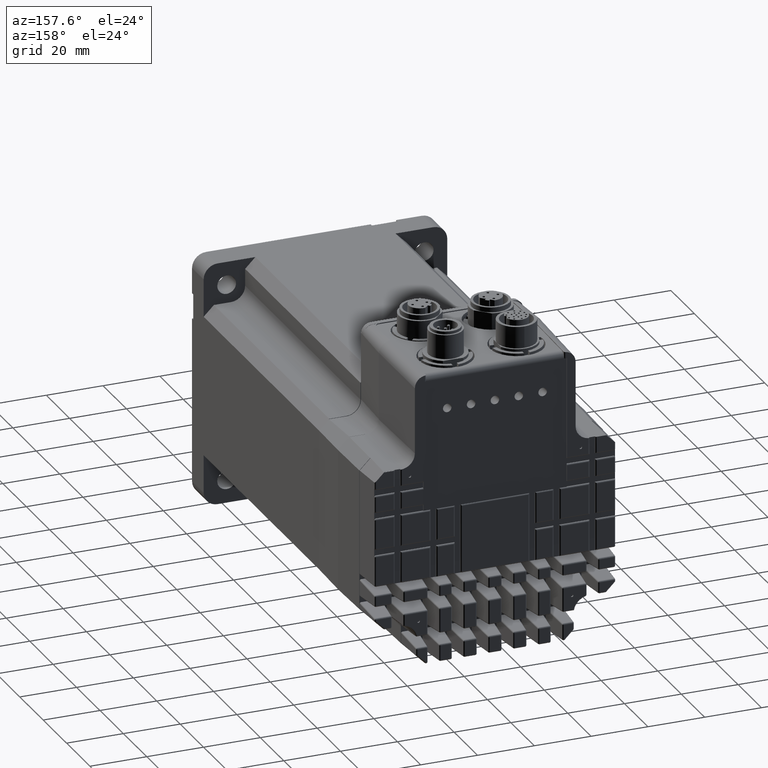
[diagram: clean part render]
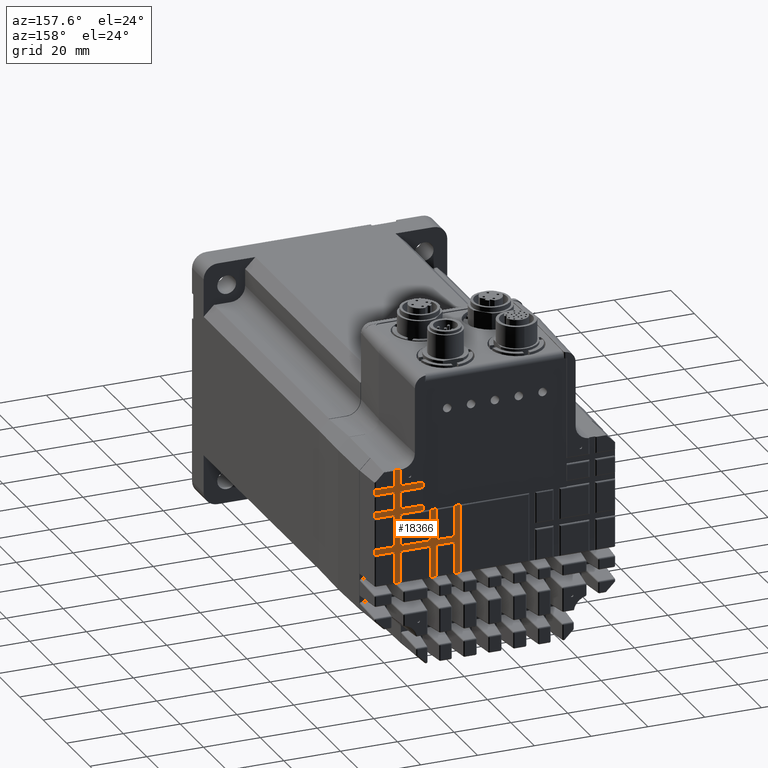
[diagram: same view with one face highlighted and labeled with its STEP entity id]
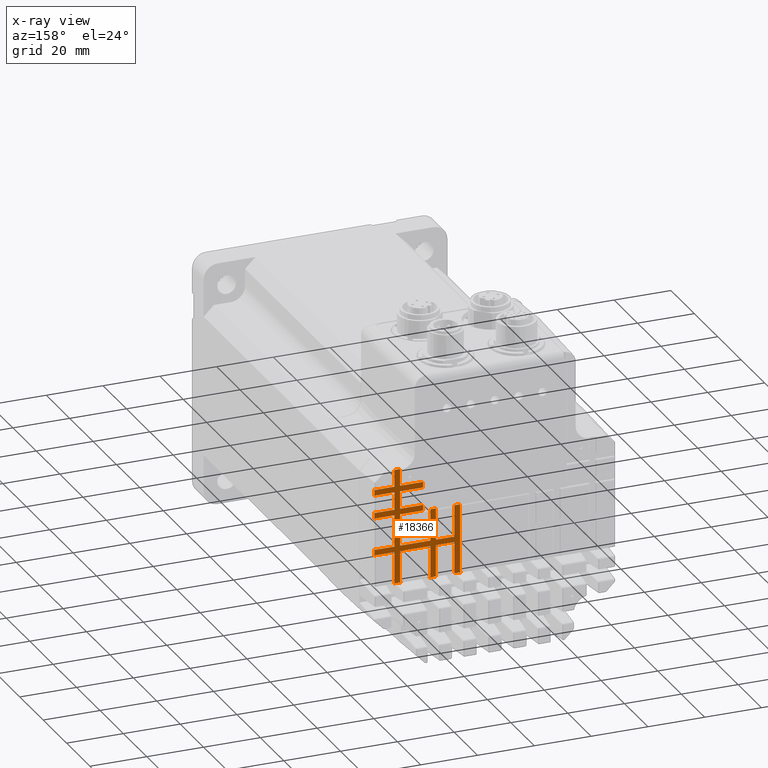
[diagram: x-ray of the same camera — body ghosted, the highlighted face saturated]
A machine part, auxiliary view. The second image highlights one B-rep face of the part: STEP entity #18366.
The next image is the same camera in x-ray: the body ghosted, the highlighted face saturated — about 0% of this face is hidden behind the body in this view.
In plain terms, the highlighted planar face has unit normal (0, -1, 0).
Its self-contained STEP definition (entity closure, byte-faithful):
#375=ELLIPSE('',#19656,0.500304772149411,0.5);
#376=ELLIPSE('',#19657,0.500304772149411,0.5);
#377=ELLIPSE('',#19658,0.500304772149411,0.5);
#498=B_SPLINE_CURVE_WITH_KNOTS('',3,(#28072,#28073,#28074,#28075),
 .UNSPECIFIED.,.F.,.F.,(4,4),(0.,0.000758926731943536),.UNSPECIFIED.);
#499=B_SPLINE_CURVE_WITH_KNOTS('',3,(#28076,#28077,#28078,#28079),
 .UNSPECIFIED.,.F.,.F.,(4,4),(0.,0.000758549921999602),.UNSPECIFIED.);
#500=B_SPLINE_CURVE_WITH_KNOTS('',3,(#28087,#28088,#28089,#28090),
 .UNSPECIFIED.,.F.,.F.,(4,4),(0.,0.000758926731943508),.UNSPECIFIED.);
#501=B_SPLINE_CURVE_WITH_KNOTS('',3,(#28091,#28092,#28093,#28094),
 .UNSPECIFIED.,.F.,.F.,(4,4),(0.,0.000758549921999589),.UNSPECIFIED.);
#502=B_SPLINE_CURVE_WITH_KNOTS('',3,(#28102,#28103,#28104,#28105),
 .UNSPECIFIED.,.F.,.F.,(4,4),(0.,0.000758926731943466),.UNSPECIFIED.);
#503=B_SPLINE_CURVE_WITH_KNOTS('',3,(#28106,#28107,#28108,#28109),
 .UNSPECIFIED.,.F.,.F.,(4,4),(0.,0.000758549921999566),.UNSPECIFIED.);
#504=B_SPLINE_CURVE_WITH_KNOTS('',3,(#28139,#28140,#28141,#28142),
 .UNSPECIFIED.,.F.,.F.,(4,4),(0.,0.000758549921999556),.UNSPECIFIED.);
#616=CIRCLE('',#19541,4.99127246753589);
#621=CIRCLE('',#19659,5.09999999999999);
#2649=ORIENTED_EDGE('',*,*,#7094,.T.);
#2650=ORIENTED_EDGE('',*,*,#7095,.T.);
#2651=ORIENTED_EDGE('',*,*,#7096,.T.);
#2652=ORIENTED_EDGE('',*,*,#6739,.T.);
#2653=ORIENTED_EDGE('',*,*,#7097,.T.);
#2654=ORIENTED_EDGE('',*,*,#7098,.F.);
#2655=ORIENTED_EDGE('',*,*,#7099,.F.);
#2656=ORIENTED_EDGE('',*,*,#7100,.F.);
#2657=ORIENTED_EDGE('',*,*,#7101,.T.);
#2658=ORIENTED_EDGE('',*,*,#6751,.T.);
#2659=ORIENTED_EDGE('',*,*,#7102,.T.);
#2660=ORIENTED_EDGE('',*,*,#7103,.F.);
#2661=ORIENTED_EDGE('',*,*,#7104,.F.);
#2662=ORIENTED_EDGE('',*,*,#7105,.F.);
#2663=ORIENTED_EDGE('',*,*,#7106,.T.);
#2664=ORIENTED_EDGE('',*,*,#6747,.T.);
#2665=ORIENTED_EDGE('',*,*,#7107,.T.);
#2666=ORIENTED_EDGE('',*,*,#7108,.F.);
#2667=ORIENTED_EDGE('',*,*,#7109,.F.);
#2668=ORIENTED_EDGE('',*,*,#7110,.T.);
#2669=ORIENTED_EDGE('',*,*,#7111,.T.);
#2670=ORIENTED_EDGE('',*,*,#7112,.T.);
#2671=ORIENTED_EDGE('',*,*,#7113,.F.);
#2672=ORIENTED_EDGE('',*,*,#7114,.F.);
#2673=ORIENTED_EDGE('',*,*,#7115,.F.);
#2674=ORIENTED_EDGE('',*,*,#7116,.T.);
#2675=ORIENTED_EDGE('',*,*,#7117,.T.);
#2676=ORIENTED_EDGE('',*,*,#7118,.T.);
#2677=ORIENTED_EDGE('',*,*,#7119,.T.);
#2678=ORIENTED_EDGE('',*,*,#7120,.T.);
#2679=ORIENTED_EDGE('',*,*,#7121,.T.);
#2680=ORIENTED_EDGE('',*,*,#7122,.T.);
#2681=ORIENTED_EDGE('',*,*,#7123,.F.);
#2682=ORIENTED_EDGE('',*,*,#7124,.F.);
#2683=ORIENTED_EDGE('',*,*,#7125,.T.);
#2684=ORIENTED_EDGE('',*,*,#7126,.T.);
#2685=ORIENTED_EDGE('',*,*,#7127,.T.);
#2686=ORIENTED_EDGE('',*,*,#7128,.F.);
#2687=ORIENTED_EDGE('',*,*,#7129,.T.);
#2688=ORIENTED_EDGE('',*,*,#7130,.T.);
#2689=ORIENTED_EDGE('',*,*,#7131,.T.);
#2690=ORIENTED_EDGE('',*,*,#7132,.T.);
#2691=ORIENTED_EDGE('',*,*,#7133,.F.);
#2692=ORIENTED_EDGE('',*,*,#7134,.T.);
#2693=ORIENTED_EDGE('',*,*,#7135,.T.);
#2694=ORIENTED_EDGE('',*,*,#7136,.T.);
#2695=ORIENTED_EDGE('',*,*,#7137,.F.);
#2696=ORIENTED_EDGE('',*,*,#7138,.F.);
#2697=ORIENTED_EDGE('',*,*,#7139,.F.);
#2698=ORIENTED_EDGE('',*,*,#7140,.T.);
#2699=ORIENTED_EDGE('',*,*,#7141,.F.);
#2700=ORIENTED_EDGE('',*,*,#6863,.T.);
#2701=ORIENTED_EDGE('',*,*,#6735,.F.);
#2702=ORIENTED_EDGE('',*,*,#6758,.T.);
#2703=ORIENTED_EDGE('',*,*,#7142,.T.);
#6735=EDGE_CURVE('',#9004,#9005,#10473,.T.);
#6739=EDGE_CURVE('',#9007,#9008,#10477,.F.);
#6747=EDGE_CURVE('',#9016,#9015,#10483,.F.);
#6751=EDGE_CURVE('',#9020,#9019,#10485,.F.);
#6758=EDGE_CURVE('',#9004,#9025,#10489,.T.);
#6863=EDGE_CURVE('',#9115,#9005,#616,.T.);
#7094=EDGE_CURVE('',#9337,#9338,#10698,.T.);
#7095=EDGE_CURVE('',#9338,#9339,#10699,.T.);
#7096=EDGE_CURVE('',#9339,#9007,#498,.T.);
#7097=EDGE_CURVE('',#9008,#9340,#499,.T.);
#7098=EDGE_CURVE('',#9341,#9340,#10700,.T.);
#7099=EDGE_CURVE('',#9342,#9341,#10701,.T.);
#7100=EDGE_CURVE('',#9343,#9342,#10702,.T.);
#7101=EDGE_CURVE('',#9343,#9020,#500,.T.);
#7102=EDGE_CURVE('',#9019,#9344,#501,.T.);
#7103=EDGE_CURVE('',#9345,#9344,#10703,.T.);
#7104=EDGE_CURVE('',#9346,#9345,#10704,.T.);
#7105=EDGE_CURVE('',#9347,#9346,#10705,.T.);
#7106=EDGE_CURVE('',#9347,#9016,#502,.T.);
#7107=EDGE_CURVE('',#9015,#9348,#503,.T.);
#7108=EDGE_CURVE('',#9349,#9348,#10706,.T.);
#7109=EDGE_CURVE('',#9350,#9349,#10707,.T.);
#7110=EDGE_CURVE('',#9350,#9351,#375,.T.);
#7111=EDGE_CURVE('',#9351,#9352,#10708,.F.);
#7112=EDGE_CURVE('',#9352,#9353,#376,.T.);
#7113=EDGE_CURVE('',#9354,#9353,#10709,.T.);
#7114=EDGE_CURVE('',#9355,#9354,#10710,.T.);
#7115=EDGE_CURVE('',#9356,#9355,#10711,.T.);
#7116=EDGE_CURVE('',#9356,#9357,#377,.T.);
#7117=EDGE_CURVE('',#9357,#9358,#10712,.F.);
#7118=EDGE_CURVE('',#9358,#9359,#10713,.T.);
#7119=EDGE_CURVE('',#9359,#9360,#10714,.T.);
#7120=EDGE_CURVE('',#9360,#9361,#10715,.T.);
#7121=EDGE_CURVE('',#9361,#9362,#10716,.F.);
#7122=EDGE_CURVE('',#9362,#9363,#504,.T.);
#7123=EDGE_CURVE('',#9364,#9363,#10717,.T.);
#7124=EDGE_CURVE('',#9365,#9364,#10718,.T.);
#7125=EDGE_CURVE('',#9365,#9366,#10719,.T.);
#7126=EDGE_CURVE('',#9366,#9367,#10720,.T.);
#7127=EDGE_CURVE('',#9367,#9368,#10721,.T.);
#7128=EDGE_CURVE('',#9369,#9368,#10722,.T.);
#7129=EDGE_CURVE('',#9369,#9370,#10723,.T.);
#7130=EDGE_CURVE('',#9370,#9371,#10724,.T.);
#7131=EDGE_CURVE('',#9371,#9372,#10725,.T.);
#7132=EDGE_CURVE('',#9372,#9373,#10726,.T.);
#7133=EDGE_CURVE('',#9374,#9373,#10727,.T.);
#7134=EDGE_CURVE('',#9374,#9375,#10728,.T.);
#7135=EDGE_CURVE('',#9375,#9376,#10729,.T.);
#7136=EDGE_CURVE('',#9376,#9377,#10730,.T.);
#7137=EDGE_CURVE('',#9378,#9377,#10731,.T.);
#7138=EDGE_CURVE('',#9379,#9378,#10732,.T.);
#7139=EDGE_CURVE('',#9380,#9379,#10733,.T.);
#7140=EDGE_CURVE('',#9380,#9381,#621,.T.);
#7141=EDGE_CURVE('',#9115,#9381,#10734,.T.);
#7142=EDGE_CURVE('',#9025,#9337,#10735,.T.);
#9004=VERTEX_POINT('',#27333);
#9005=VERTEX_POINT('',#27335);
#9007=VERTEX_POINT('',#27342);
#9008=VERTEX_POINT('',#27343);
#9015=VERTEX_POINT('',#27357);
#9016=VERTEX_POINT('',#27359);
#9019=VERTEX_POINT('',#27365);
#9020=VERTEX_POINT('',#27367);
#9025=VERTEX_POINT('',#27379);
#9115=VERTEX_POINT('',#27600);
#9337=VERTEX_POINT('',#28068);
#9338=VERTEX_POINT('',#28069);
#9339=VERTEX_POINT('',#28071);
#9340=VERTEX_POINT('',#28080);
#9341=VERTEX_POINT('',#28082);
#9342=VERTEX_POINT('',#28084);
#9343=VERTEX_POINT('',#28086);
#9344=VERTEX_POINT('',#28095);
#9345=VERTEX_POINT('',#28097);
#9346=VERTEX_POINT('',#28099);
#9347=VERTEX_POINT('',#28101);
#9348=VERTEX_POINT('',#28110);
#9349=VERTEX_POINT('',#28112);
#9350=VERTEX_POINT('',#28114);
#9351=VERTEX_POINT('',#28116);
#9352=VERTEX_POINT('',#28118);
#9353=VERTEX_POINT('',#28120);
#9354=VERTEX_POINT('',#28122);
#9355=VERTEX_POINT('',#28124);
#9356=VERTEX_POINT('',#28126);
#9357=VERTEX_POINT('',#28128);
#9358=VERTEX_POINT('',#28130);
#9359=VERTEX_POINT('',#28132);
#9360=VERTEX_POINT('',#28134);
#9361=VERTEX_POINT('',#28136);
#9362=VERTEX_POINT('',#28138);
#9363=VERTEX_POINT('',#28143);
#9364=VERTEX_POINT('',#28145);
#9365=VERTEX_POINT('',#28147);
#9366=VERTEX_POINT('',#28149);
#9367=VERTEX_POINT('',#28151);
#9368=VERTEX_POINT('',#28153);
#9369=VERTEX_POINT('',#28155);
#9370=VERTEX_POINT('',#28157);
#9371=VERTEX_POINT('',#28159);
#9372=VERTEX_POINT('',#28161);
#9373=VERTEX_POINT('',#28163);
#9374=VERTEX_POINT('',#28165);
#9375=VERTEX_POINT('',#28167);
#9376=VERTEX_POINT('',#28169);
#9377=VERTEX_POINT('',#28171);
#9378=VERTEX_POINT('',#28173);
#9379=VERTEX_POINT('',#28175);
#9380=VERTEX_POINT('',#28177);
#9381=VERTEX_POINT('',#28179);
#10473=LINE('',#27334,#11863);
#10477=LINE('',#27341,#11867);
#10483=LINE('',#27358,#11873);
#10485=LINE('',#27366,#11875);
#10489=LINE('',#27380,#11879);
#10698=LINE('',#28067,#12088);
#10699=LINE('',#28070,#12089);
#10700=LINE('',#28081,#12090);
#10701=LINE('',#28083,#12091);
#10702=LINE('',#28085,#12092);
#10703=LINE('',#28096,#12093);
#10704=LINE('',#28098,#12094);
#10705=LINE('',#28100,#12095);
#10706=LINE('',#28111,#12096);
#10707=LINE('',#28113,#12097);
#10708=LINE('',#28117,#12098);
#10709=LINE('',#28121,#12099);
#10710=LINE('',#28123,#12100);
#10711=LINE('',#28125,#12101);
#10712=LINE('',#28129,#12102);
#10713=LINE('',#28131,#12103);
#10714=LINE('',#28133,#12104);
#10715=LINE('',#28135,#12105);
#10716=LINE('',#28137,#12106);
#10717=LINE('',#28144,#12107);
#10718=LINE('',#28146,#12108);
#10719=LINE('',#28148,#12109);
#10720=LINE('',#28150,#12110);
#10721=LINE('',#28152,#12111);
#10722=LINE('',#28154,#12112);
#10723=LINE('',#28156,#12113);
#10724=LINE('',#28158,#12114);
#10725=LINE('',#28160,#12115);
#10726=LINE('',#28162,#12116);
#10727=LINE('',#28164,#12117);
#10728=LINE('',#28166,#12118);
#10729=LINE('',#28168,#12119);
#10730=LINE('',#28170,#12120);
#10731=LINE('',#28172,#12121);
#10732=LINE('',#28174,#12122);
#10733=LINE('',#28176,#12123);
#10734=LINE('',#28180,#12124);
#10735=LINE('',#28181,#12125);
#11863=VECTOR('',#21954,1000.);
#11867=VECTOR('',#21960,1000.);
#11873=VECTOR('',#21970,1000.);
#11875=VECTOR('',#21976,1000.);
#11879=VECTOR('',#21988,1000.);
#12088=VECTOR('',#22475,1000.);
#12089=VECTOR('',#22476,1000.);
#12090=VECTOR('',#22477,1000.);
#12091=VECTOR('',#22478,1000.);
#12092=VECTOR('',#22479,1000.);
#12093=VECTOR('',#22480,1000.);
#12094=VECTOR('',#22481,1000.);
#12095=VECTOR('',#22482,1000.);
#12096=VECTOR('',#22483,1000.);
#12097=VECTOR('',#22484,1000.);
#12098=VECTOR('',#22487,1000.);
#12099=VECTOR('',#22490,1000.);
#12100=VECTOR('',#22491,1000.);
#12101=VECTOR('',#22492,1000.);
#12102=VECTOR('',#22495,1000.);
#12103=VECTOR('',#22496,1000.);
#12104=VECTOR('',#22497,1000.);
#12105=VECTOR('',#22498,1000.);
#12106=VECTOR('',#22499,1000.);
#12107=VECTOR('',#22500,1000.);
#12108=VECTOR('',#22501,1000.);
#12109=VECTOR('',#22502,1000.);
#12110=VECTOR('',#22503,1000.);
#12111=VECTOR('',#22504,1000.);
#12112=VECTOR('',#22505,1000.);
#12113=VECTOR('',#22506,1000.);
#12114=VECTOR('',#22507,1000.);
#12115=VECTOR('',#22508,1000.);
#12116=VECTOR('',#22509,1000.);
#12117=VECTOR('',#22510,1000.);
#12118=VECTOR('',#22511,1000.);
#12119=VECTOR('',#22512,1000.);
#12120=VECTOR('',#22513,1000.);
#12121=VECTOR('',#22514,1000.);
#12122=VECTOR('',#22515,1000.);
#12123=VECTOR('',#22516,1000.);
#12124=VECTOR('',#22519,1000.);
#12125=VECTOR('',#22520,1000.);
#13168=EDGE_LOOP('',(#2649,#2650,#2651,#2652,#2653,#2654,#2655,#2656,#2657,
#2658,#2659,#2660,#2661,#2662,#2663,#2664,#2665,#2666,#2667,#2668,#2669,
#2670,#2671,#2672,#2673,#2674,#2675,#2676,#2677,#2678,#2679,#2680,#2681,
#2682,#2683,#2684,#2685,#2686,#2687,#2688,#2689,#2690,#2691,#2692,#2693,
#2694,#2695,#2696,#2697,#2698,#2699,#2700,#2701,#2702,#2703));
#14377=FACE_BOUND('',#13168,.T.);
#15474=PLANE('',#19655);
#18366=ADVANCED_FACE('',(#14377),#15474,.F.);
#19541=AXIS2_PLACEMENT_3D('',#27602,#22128,#22129);
#19655=AXIS2_PLACEMENT_3D('',#28066,#22473,#22474);
#19656=AXIS2_PLACEMENT_3D('',#28115,#22485,#22486);
#19657=AXIS2_PLACEMENT_3D('',#28119,#22488,#22489);
#19658=AXIS2_PLACEMENT_3D('',#28127,#22493,#22494);
#19659=AXIS2_PLACEMENT_3D('',#28178,#22517,#22518);
#21954=DIRECTION('',(-1.,-2.67823561597106E-30,4.67487765698397E-32));
#21960=DIRECTION('',(-2.25999269525381E-15,-1.6365315811102E-15,1.));
#21970=DIRECTION('',(-2.25999269525381E-15,-1.6365315811102E-15,1.));
#21976=DIRECTION('',(-2.25999269525381E-15,-1.6365315811102E-15,1.));
#21988=DIRECTION('',(0.707108210750858,1.1572002390971E-15,-0.707105351619347));
#22128=DIRECTION('',(2.67823561597106E-30,-1.,-1.6365315811102E-15));
#22129=DIRECTION('',(0.,1.6365315811102E-15,-1.));
#22473=DIRECTION('',(2.67823561597106E-30,-1.,-1.6365315811102E-15));
#22474=DIRECTION('',(0.,1.6365315811102E-15,-1.));
#22475=DIRECTION('',(2.78650185640109E-15,1.6365315811102E-15,-1.));
#22476=DIRECTION('',(1.,-3.56454754279299E-31,1.85434268747302E-15));
#22477=DIRECTION('',(1.,8.79833054575838E-30,-3.73967419903716E-15));
#22478=DIRECTION('',(3.98187615394469E-15,-1.6365315811102E-15,1.));
#22479=DIRECTION('',(-1.,-5.74571790819997E-30,1.87438013884704E-15));
#22480=DIRECTION('',(1.,-3.59309657516687E-31,1.85608717152107E-15));
#22481=DIRECTION('',(2.45285437032701E-16,-1.6365315811102E-15,1.));
#22482=DIRECTION('',(-1.,3.59309657516686E-31,-1.85608717152107E-15));
#22483=DIRECTION('',(1.,2.69172130484039E-30,-8.24040857200146E-18));
#22484=DIRECTION('',(2.44652182994365E-16,-1.6365315811102E-15,1.));
#22485=DIRECTION('',(2.67823561597106E-30,-1.,-1.6365315811102E-15));
#22486=DIRECTION('',(2.44652182994453E-16,-1.6365315811102E-15,1.));
#22487=DIRECTION('',(1.,0.,1.6365315811102E-15));
#22488=DIRECTION('',(2.67823561597106E-30,-1.,-1.6365315811102E-15));
#22489=DIRECTION('',(-2.73491672566631E-15,1.6365315811102E-15,-1.));
#22490=DIRECTION('',(-2.73491672566611E-15,1.6365315811102E-15,-1.));
#22491=DIRECTION('',(1.,5.5320667824648E-31,1.29849552691369E-15));
#22492=DIRECTION('',(-2.55689542751134E-15,-1.6365315811102E-15,1.));
#22493=DIRECTION('',(2.67823561597106E-30,-1.,-1.6365315811102E-15));
#22494=DIRECTION('',(-2.55689542751138E-15,-1.6365315811102E-15,1.));
#22495=DIRECTION('',(1.,0.,1.6365315811102E-15));
#22496=DIRECTION('',(-1.31176315617547E-15,-1.6365315811102E-15,1.));
#22497=DIRECTION('',(-1.,8.46105023591874E-31,-2.15354269984333E-15));
#22498=DIRECTION('',(1.93432929184341E-15,1.6365315811102E-15,-1.));
#22499=DIRECTION('',(1.,0.,1.6365315811102E-15));
#22500=DIRECTION('',(1.76589467109741E-15,1.6365315811102E-15,-1.));
#22501=DIRECTION('',(-1.,-2.58085557229528E-30,-5.95039196308799E-17));
#22502=DIRECTION('',(1.31166012019522E-15,1.6365315811102E-15,-1.));
#22503=DIRECTION('',(1.,-8.46105023591874E-31,2.15354269984333E-15));
#22504=DIRECTION('',(-1.31165819974883E-15,-1.6365315811102E-15,1.));
#22505=DIRECTION('',(-1.,-2.58085557229528E-30,-5.95039196308799E-17));
#22506=DIRECTION('',(6.61031735616037E-17,1.6365315811102E-15,-1.));
#22507=DIRECTION('',(1.,5.5320667824648E-31,1.29849552691369E-15));
#22508=DIRECTION('',(-2.24582344418857E-15,-1.6365315811102E-15,1.));
#22509=DIRECTION('',(-1.,-5.53206678246481E-31,-1.29849552691369E-15));
#22510=DIRECTION('',(1.29579967889406E-15,1.6365315811102E-15,-1.));
#22511=DIRECTION('',(1.,2.64555319319549E-30,1.99705420615207E-17));
#22512=DIRECTION('',(-2.74403069960027E-15,-1.6365315811102E-15,1.));
#22513=DIRECTION('',(-1.,-5.6188350376687E-30,1.79684856414611E-15));
#22514=DIRECTION('',(1.29579967889406E-15,1.6365315811102E-15,-1.));
#22515=DIRECTION('',(-0.999999995915977,1.47905217215561E-19,-9.03772459544607E-5));
#22516=DIRECTION('',(9.03772459534546E-5,1.63653157442657E-15,-0.999999995915977));
#22517=DIRECTION('',(2.67823561597106E-30,-1.,-1.6365315811102E-15));
#22518=DIRECTION('',(0.,1.6365315811102E-15,-1.));
#22519=DIRECTION('',(0.000280432640493664,1.15648227184356E-15,-0.999999960678766));
#22520=DIRECTION('',(-0.999999706600061,1.25362996961823E-18,-0.000766028583921649));
#27333=CARTESIAN_POINT('',(86.1154650292038,96.25,92.3724775324641));
#27334=CARTESIAN_POINT('',(80.265625,96.25,92.3724775324641));
#27335=CARTESIAN_POINT('',(80.265625,96.25,92.3724775324641));
#27341=CARTESIAN_POINT('',(89.3601792042444,96.25,97.36375));
#27342=CARTESIAN_POINT('',(89.3601792042444,96.25,86.8858269618321));
#27343=CARTESIAN_POINT('',(89.3601792042454,96.2499999999741,83.9083615711887));
#27357=CARTESIAN_POINT('',(89.3601792042454,96.2499999999741,62.5765059008148));
#27358=CARTESIAN_POINT('',(89.3601792042444,96.25,97.36375));
#27359=CARTESIAN_POINT('',(89.3601792042445,96.25,65.5546537989023));
#27365=CARTESIAN_POINT('',(89.3601792042454,96.2499999999741,75.7183615711888));
#27366=CARTESIAN_POINT('',(89.3601792042444,96.25,97.36375));
#27367=CARTESIAN_POINT('',(89.3601792042445,96.25,78.6965094692763));
#27379=CARTESIAN_POINT('',(86.1241925969572,96.25,92.36375));
#27380=CARTESIAN_POINT('',(90.697449720553,96.25,87.7905113679778));
#27600=CARTESIAN_POINT('',(80.2629535685445,96.25,92.3724782473667));
#27602=CARTESIAN_POINT('',(80.265625,96.25,97.36375));
#28066=CARTESIAN_POINT('',(80.265625,96.25,97.36375));
#28067=CARTESIAN_POINT('',(82.2617680533997,96.25,86.3967530128079));
#28068=CARTESIAN_POINT('',(82.2617680533997,96.25,92.3607912715283));
#28069=CARTESIAN_POINT('',(82.2617680533997,96.25,86.3967530128082));
#28070=CARTESIAN_POINT('',(82.2617680533997,96.25,86.3967530128082));
#28071=CARTESIAN_POINT('',(88.879886622981,96.25,86.3967530128082));
#28072=CARTESIAN_POINT('',(88.879886622981,96.25,86.3967530128082));
#28073=CARTESIAN_POINT('',(89.1365045564134,96.25,86.3967530128082));
#28074=CARTESIAN_POINT('',(89.360179204245,96.25,86.629600033602));
#28075=CARTESIAN_POINT('',(89.360179204245,96.25,86.885826961832));
#28076=CARTESIAN_POINT('',(89.3601792042454,96.2499999999741,83.9083615711887));
#28077=CARTESIAN_POINT('',(89.3601792042454,96.2499999999741,84.1644062126094));
#28078=CARTESIAN_POINT('',(89.1365757304495,96.25,84.3974355202524));
#28079=CARTESIAN_POINT('',(88.879886622981,96.25,84.3974355202524));
#28080=CARTESIAN_POINT('',(88.879886622981,96.25,84.3974355202524));
#28081=CARTESIAN_POINT('',(82.4217680533997,96.25,84.3974355202524));
#28082=CARTESIAN_POINT('',(82.2617680533997,96.25,84.3974355202524));
#28083=CARTESIAN_POINT('',(82.2617680533997,96.25,78.2074355202522));
#28084=CARTESIAN_POINT('',(82.2617680533997,96.25,78.2074355202524));
#28085=CARTESIAN_POINT('',(89.8617680533996,96.25,78.2074355202524));
#28086=CARTESIAN_POINT('',(88.879886622981,96.25,78.2074355202524));
#28087=CARTESIAN_POINT('',(88.879886622981,96.25,78.2074355202524));
#28088=CARTESIAN_POINT('',(89.1365045564135,96.25,78.2074355202524));
#28089=CARTESIAN_POINT('',(89.360179204245,96.25,78.4402825410462));
#28090=CARTESIAN_POINT('',(89.3601792042451,96.25,78.6965094692762));
#28091=CARTESIAN_POINT('',(89.3601792042454,96.2499999999741,75.7183615711888));
#28092=CARTESIAN_POINT('',(89.3601792042454,96.2499999999741,75.9744062126095));
#28093=CARTESIAN_POINT('',(89.1365757304495,96.25,76.2074355202524));
#28094=CARTESIAN_POINT('',(88.879886622981,96.25,76.2074355202524));
#28095=CARTESIAN_POINT('',(88.879886622981,96.25,76.2074355202524));
#28096=CARTESIAN_POINT('',(82.4217680533996,96.25,76.2074355202524));
#28097=CARTESIAN_POINT('',(82.2617680533997,96.25,76.2074355202524));
#28098=CARTESIAN_POINT('',(82.2617680533997,96.25,65.0655798498781));
#28099=CARTESIAN_POINT('',(82.2617680533997,96.25,65.0655798498784));
#28100=CARTESIAN_POINT('',(89.865625,96.25,65.0655798498784));
#28101=CARTESIAN_POINT('',(88.8798866229811,96.25,65.0655798498784));
#28102=CARTESIAN_POINT('',(88.8798866229811,96.25,65.0655798498784));
#28103=CARTESIAN_POINT('',(89.1365045564135,96.25,65.0655798498784));
#28104=CARTESIAN_POINT('',(89.360179204245,96.25,65.2984268706722));
#28105=CARTESIAN_POINT('',(89.3601792042451,96.25,65.5546537989022));
#28106=CARTESIAN_POINT('',(89.3601792042454,96.2499999999741,62.5765059008148));
#28107=CARTESIAN_POINT('',(89.3601792042454,96.2499999999741,62.8325505422355));
#28108=CARTESIAN_POINT('',(89.1365757304495,96.25,63.0655798498784));
#28109=CARTESIAN_POINT('',(88.8798866229811,96.25,63.0655798498784));
#28110=CARTESIAN_POINT('',(88.8798866229811,96.2500000000001,63.0655798498784));
#28111=CARTESIAN_POINT('',(89.865625,96.2500000000001,63.0655798498784));
#28112=CARTESIAN_POINT('',(82.2617680533997,96.2500000000001,63.0655798498784));
#28113=CARTESIAN_POINT('',(82.2617680533997,96.25,51.9199464683537));
#28114=CARTESIAN_POINT('',(82.2617680533997,96.25,52.4218400896584));
#28115=CARTESIAN_POINT('',(82.7617680533997,96.25,52.4218400896584));
#28116=CARTESIAN_POINT('',(82.7617680533997,96.2500000000001,51.921535317509));
#28117=CARTESIAN_POINT('',(80.2656250000001,96.2500000000001,51.921535317509));
#28118=CARTESIAN_POINT('',(79.7617680533992,96.2500000000001,51.921535317509));
#28119=CARTESIAN_POINT('',(79.7617680533992,96.2500000000001,52.4218400896584));
#28120=CARTESIAN_POINT('',(80.2617680533992,96.25,52.4218400896584));
#28121=CARTESIAN_POINT('',(80.2617680533992,96.25,51.9199464683542));
#28122=CARTESIAN_POINT('',(80.2617680533992,96.25,63.0655798498789));
#28123=CARTESIAN_POINT('',(80.3315400587353,96.25,63.0655798498784));
#28124=CARTESIAN_POINT('',(69.6415400587352,96.25,63.0655798498784));
#28125=CARTESIAN_POINT('',(69.6415400587352,96.2500000000001,51.9199464683537));
#28126=CARTESIAN_POINT('',(69.6415400587352,96.2500000000001,52.4218400896584));
#28127=CARTESIAN_POINT('',(70.1415400587352,96.2500000000001,52.4218400896584));
#28128=CARTESIAN_POINT('',(70.1415400587352,96.2500000000001,51.921535317509));
#28129=CARTESIAN_POINT('',(80.2656250000001,96.2500000000001,51.921535317509));
#28130=CARTESIAN_POINT('',(67.6465400587352,96.2500000000001,51.921535317509));
#28131=CARTESIAN_POINT('',(67.6465400587352,96.2500000000001,51.9199464683537));
#28132=CARTESIAN_POINT('',(67.6465400587352,96.2500000000001,63.0655798498784));
#28133=CARTESIAN_POINT('',(67.6465400587352,96.25,63.0655798498784));
#28134=CARTESIAN_POINT('',(61.1065400587352,96.2500000000001,63.0655798498784));
#28135=CARTESIAN_POINT('',(61.1065400587352,96.2500000000001,51.9199464683537));
#28136=CARTESIAN_POINT('',(61.1065400587352,96.2500000000001,51.921535317509));
#28137=CARTESIAN_POINT('',(80.2656250000001,96.2500000000001,51.921535317509));
#28138=CARTESIAN_POINT('',(58.6203545792557,96.2499999999741,51.9215353175081));
#28139=CARTESIAN_POINT('',(58.6203545792557,96.2499999999741,51.9215353175081));
#28140=CARTESIAN_POINT('',(58.8763992206764,96.2499999999741,51.9215353175081));
#28141=CARTESIAN_POINT('',(59.1094285283193,96.2500000000001,52.145138791304));
#28142=CARTESIAN_POINT('',(59.1094285283193,96.2500000000001,52.4018278987724));
#28143=CARTESIAN_POINT('',(59.1094285283193,96.25,52.4018278987724));
#28144=CARTESIAN_POINT('',(59.1094285283193,96.25,64.063749998178));
#28145=CARTESIAN_POINT('',(59.1094285283193,96.25,76.2074355232625));
#28146=CARTESIAN_POINT('',(69.3315400587352,96.25,76.2074355232625));
#28147=CARTESIAN_POINT('',(61.1065400587352,96.25,76.2074355232625));
#28148=CARTESIAN_POINT('',(61.1065400587352,96.25,65.0655798498781));
#28149=CARTESIAN_POINT('',(61.1065400587352,96.25,65.0655798498784));
#28150=CARTESIAN_POINT('',(67.6465400587352,96.25,65.0655798498784));
#28151=CARTESIAN_POINT('',(67.6465400587352,96.25,65.0655798498784));
#28152=CARTESIAN_POINT('',(67.6465400587352,96.25,65.0655798498781));
#28153=CARTESIAN_POINT('',(67.6465400587352,96.25,76.2074355232625));
#28154=CARTESIAN_POINT('',(69.3315400587352,96.25,76.2074355232625));
#28155=CARTESIAN_POINT('',(69.6415400587352,96.25,76.2074355232625));
#28156=CARTESIAN_POINT('',(69.6415400587352,96.25,65.0655798498781));
#28157=CARTESIAN_POINT('',(69.6415400587352,96.25,65.0655798498784));
#28158=CARTESIAN_POINT('',(80.3315400587353,96.25,65.0655798498784));
#28159=CARTESIAN_POINT('',(80.2617680533992,96.25,65.0655798498784));
#28160=CARTESIAN_POINT('',(80.2617680533992,96.25,65.0655798498787));
#28161=CARTESIAN_POINT('',(80.2617680533992,96.25,76.207435523263));
#28162=CARTESIAN_POINT('',(80.3315400587352,96.25,76.2074355232624));
#28163=CARTESIAN_POINT('',(72.2156249984949,96.2500025111474,76.2074355232625));
#28164=CARTESIAN_POINT('',(72.2156249984949,96.25,97.411307672503));
#28165=CARTESIAN_POINT('',(72.2156249984949,96.25,78.2074355202524));
#28166=CARTESIAN_POINT('',(72.215624998495,96.25,78.2074355202524));
#28167=CARTESIAN_POINT('',(80.2617680533991,96.25,78.207435520253));
#28168=CARTESIAN_POINT('',(80.2617680533991,96.25,78.2074355202527));
#28169=CARTESIAN_POINT('',(80.2617680533991,96.25,84.397435520253));
#28170=CARTESIAN_POINT('',(80.3315400587352,96.25,84.3974355202524));
#28171=CARTESIAN_POINT('',(72.2156249984949,96.2500000000001,84.3974355202524));
#28172=CARTESIAN_POINT('',(72.2156249984949,96.25,97.411307672503));
#28173=CARTESIAN_POINT('',(72.2156249984949,96.25,86.3960257543868));
#28174=CARTESIAN_POINT('',(80.2625444492303,96.25,86.3967530128082));
#28175=CARTESIAN_POINT('',(80.2625444492303,96.25,86.3967530128082));
#28176=CARTESIAN_POINT('',(80.2620139347965,96.25,92.2667529888347));
#28177=CARTESIAN_POINT('',(80.2620139347965,96.25,92.266752988835));
#28178=CARTESIAN_POINT('',(80.2615530108422,96.25,97.3667529680064));
#28179=CARTESIAN_POINT('',(80.2629832172829,96.25,92.2667532606534));
#28180=CARTESIAN_POINT('',(80.2232220356797,96.2499999999998,234.051889148122));
#28181=CARTESIAN_POINT('',(82.2617680533997,96.25,92.3607912715283));